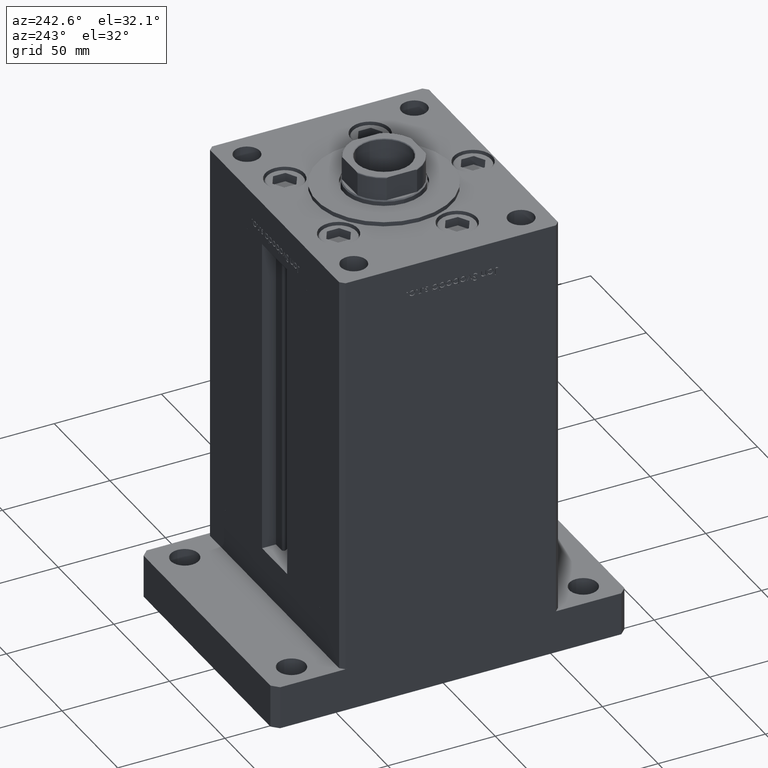
[diagram: clean part render]
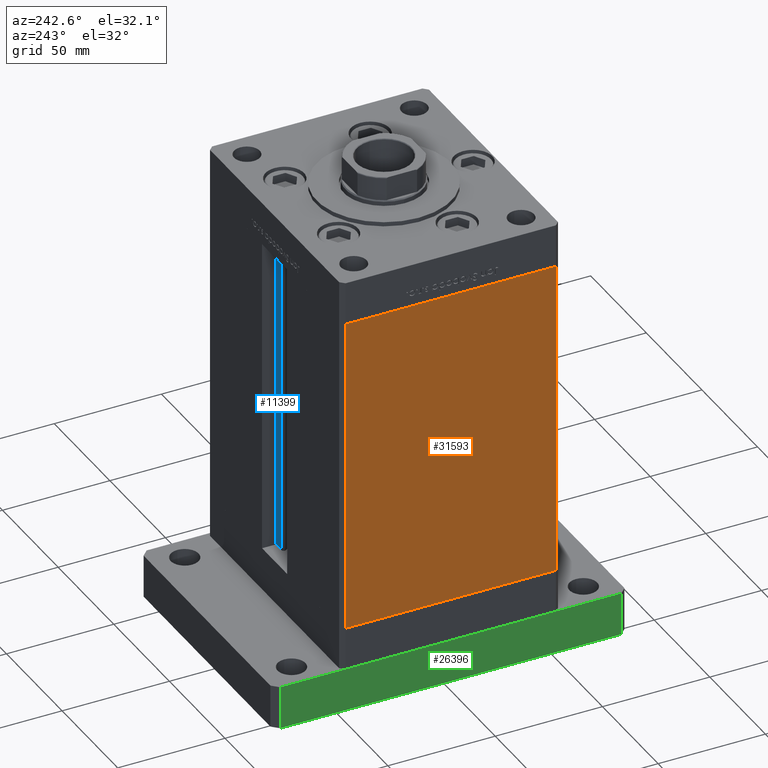
[diagram: same view with three faces highlighted in distinct colors, each labeled with its STEP entity id]
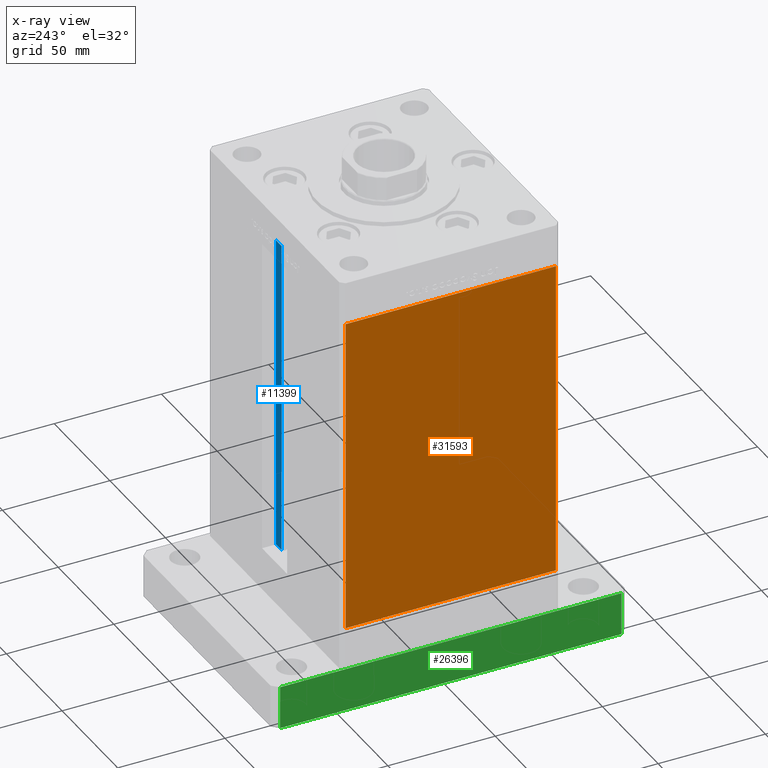
[diagram: x-ray of the same camera — body ghosted, the three highlighted faces saturated]
A machine part, auxiliary view with three faces highlighted in distinct colors.
The next image is the same camera in x-ray (body ghosted, the three faces saturated) — at least one of them is partly hidden behind the body in this view.
Their STEP definitions:

[orange] entity #31593 — the highlighted planar face has unit normal (1, 0, 0).
#1453 = EDGE_CURVE ( 'NONE', #38948, #11494, #34101, .T. ) ;
#2746 = ORIENTED_EDGE ( 'NONE', *, *, #45062, .F. ) ;
#3248 = DIRECTION ( 'NONE',  ( 2.832201593431521726E-16, -1.000000000000000000, 0.000000000000000000 ) ) ;
#3705 = CARTESIAN_POINT ( 'NONE',  ( -59.99999999999998579, -49.00000000000000000, 0.000000000000000000 ) ) ;
#6067 = VECTOR ( 'NONE', #3248, 1000.000000000000000 ) ;
#6714 = DIRECTION ( 'NONE',  ( 2.832201593431521726E-16, -1.000000000000000000, 0.000000000000000000 ) ) ;
#7109 = DIRECTION ( 'NONE',  ( -0.000000000000000000, -0.000000000000000000, -1.000000000000000000 ) ) ;
#8624 = EDGE_CURVE ( 'NONE', #16436, #19419, #48616, .T. ) ;
#9971 = EDGE_LOOP ( 'NONE', ( #37268, #30382, #2746, #10393 ) ) ;
#10393 = ORIENTED_EDGE ( 'NONE', *, *, #8624, .T. ) ;
#11494 = VERTEX_POINT ( 'NONE', #3705 ) ;
#16436 = VERTEX_POINT ( 'NONE', #16627 ) ;
#16457 = CARTESIAN_POINT ( 'NONE',  ( -59.99999999999998579, -49.00000000000000000, 148.5000000000000000 ) ) ;
#16627 = CARTESIAN_POINT ( 'NONE',  ( -60.00000000000001421, 49.00000000000000000, 148.5000000000000000 ) ) ;
#19419 = VERTEX_POINT ( 'NONE', #43335 ) ;
#22221 = VECTOR ( 'NONE', #6714, 1000.000000000000000 ) ;
#22447 = FACE_OUTER_BOUND ( 'NONE', #9971, .T. ) ;
#26004 = DIRECTION ( 'NONE',  ( -2.832201593431521726E-16, 1.000000000000000000, 0.000000000000000000 ) ) ;
#26270 = CARTESIAN_POINT ( 'NONE',  ( -60.00000000000001421, 49.00000000000000000, 0.000000000000000000 ) ) ;
#28321 = AXIS2_PLACEMENT_3D ( 'NONE', #47680, #30867, #26004 ) ;
#29934 = EDGE_CURVE ( 'NONE', #19419, #11494, #52007, .T. ) ;
#30382 = ORIENTED_EDGE ( 'NONE', *, *, #1453, .F. ) ;
#30570 = DIRECTION ( 'NONE',  ( -0.000000000000000000, -0.000000000000000000, -1.000000000000000000 ) ) ;
#30867 = DIRECTION ( 'NONE',  ( 1.000000000000000000, 2.832201593431521726E-16, -0.000000000000000000 ) ) ;
#31593 = ADVANCED_FACE ( 'NONE', ( #22447 ), #42545, .F. ) ;
#33981 = VECTOR ( 'NONE', #30570, 1000.000000000000000 ) ;
#34101 = LINE ( 'NONE', #51175, #33981 ) ;
#37268 = ORIENTED_EDGE ( 'NONE', *, *, #29934, .T. ) ;
#38948 = VERTEX_POINT ( 'NONE', #16457 ) ;
#40427 = LINE ( 'NONE', #52882, #6067 ) ;
#42545 = PLANE ( 'NONE',  #28321 ) ;
#43335 = CARTESIAN_POINT ( 'NONE',  ( -60.00000000000001421, 49.00000000000000000, 0.000000000000000000 ) ) ;
#43748 = VECTOR ( 'NONE', #7109, 1000.000000000000000 ) ;
#44294 = CARTESIAN_POINT ( 'NONE',  ( -60.00000000000001421, 49.00000000000000000, 148.5000000000000000 ) ) ;
#45062 = EDGE_CURVE ( 'NONE', #16436, #38948, #40427, .T. ) ;
#47680 = CARTESIAN_POINT ( 'NONE',  ( -60.00000000000001421, 49.00000000000000000, 148.5000000000000000 ) ) ;
#48616 = LINE ( 'NONE', #44294, #43748 ) ;
#51175 = CARTESIAN_POINT ( 'NONE',  ( -59.99999999999998579, -49.00000000000000000, 148.5000000000000000 ) ) ;
#52007 = LINE ( 'NONE', #26270, #22221 ) ;
#52882 = CARTESIAN_POINT ( 'NONE',  ( -60.00000000000001421, 49.00000000000000000, 148.5000000000000000 ) ) ;

[blue] entity #11399 — the highlighted planar face has unit normal (0, -1, 0).
#1990 = EDGE_CURVE ( 'NONE', #18978, #53230, #50981, .T. ) ;
#4751 = ORIENTED_EDGE ( 'NONE', *, *, #1990, .T. ) ;
#5723 = DIRECTION ( 'NONE',  ( -0.000000000000000000, -0.000000000000000000, 1.000000000000000000 ) ) ;
#6285 = VECTOR ( 'NONE', #22222, 1000.000000000000000 ) ;
#8630 = CARTESIAN_POINT ( 'NONE',  ( 0.000000000000000000, 44.50000000000000000, 148.5000000000000000 ) ) ;
#9273 = LINE ( 'NONE', #37769, #10106 ) ;
#10106 = VECTOR ( 'NONE', #5723, 1000.000000000000000 ) ;
#10221 = VERTEX_POINT ( 'NONE', #18607 ) ;
#10241 = DIRECTION ( 'NONE',  ( 0.000000000000000000, -0.000000000000000000, -1.000000000000000000 ) ) ;
#11399 = ADVANCED_FACE ( 'NONE', ( #34932 ), #14309, .F. ) ;
#13816 = CARTESIAN_POINT ( 'NONE',  ( 6.183333333334001480, 44.50000000000000000, 0.000000000000000000 ) ) ;
#14309 = PLANE ( 'NONE',  #49890 ) ;
#14341 = EDGE_CURVE ( 'NONE', #10221, #44735, #9273, .T. ) ;
#14886 = ORIENTED_EDGE ( 'NONE', *, *, #37778, .F. ) ;
#14922 = ORIENTED_EDGE ( 'NONE', *, *, #34211, .F. ) ;
#15948 = EDGE_LOOP ( 'NONE', ( #49930, #14886, #4751, #14922 ) ) ;
#17988 = VECTOR ( 'NONE', #49326, 1000.000000000000000 ) ;
#18607 = CARTESIAN_POINT ( 'NONE',  ( 11.25000000000000178, 44.50000000000000000, 0.000000000000000000 ) ) ;
#18978 = VERTEX_POINT ( 'NONE', #35227 ) ;
#20213 = DIRECTION ( 'NONE',  ( 1.000000000000000000, 0.000000000000000000, 0.000000000000000000 ) ) ;
#21029 = LINE ( 'NONE', #45195, #30255 ) ;
#22222 = DIRECTION ( 'NONE',  ( -0.000000000000000000, -0.000000000000000000, 1.000000000000000000 ) ) ;
#27028 = CARTESIAN_POINT ( 'NONE',  ( 11.25000000000000178, 44.50000000000000000, 148.5000000000000000 ) ) ;
#30255 = VECTOR ( 'NONE', #20213, 1000.000000000000000 ) ;
#30877 = CARTESIAN_POINT ( 'NONE',  ( 6.183333333334001480, 44.50000000000000000, 0.000000000000000000 ) ) ;
#34211 = EDGE_CURVE ( 'NONE', #44735, #53230, #48513, .T. ) ;
#34686 = CARTESIAN_POINT ( 'NONE',  ( 6.183333333334001480, 44.50000000000000000, 148.5000000000000000 ) ) ;
#34932 = FACE_OUTER_BOUND ( 'NONE', #15948, .T. ) ;
#35227 = CARTESIAN_POINT ( 'NONE',  ( 6.183333333334001480, 44.50000000000000000, 0.000000000000000000 ) ) ;
#37769 = CARTESIAN_POINT ( 'NONE',  ( 11.25000000000000178, 44.50000000000000000, 0.000000000000000000 ) ) ;
#37778 = EDGE_CURVE ( 'NONE', #18978, #10221, #21029, .T. ) ;
#44735 = VERTEX_POINT ( 'NONE', #27028 ) ;
#45195 = CARTESIAN_POINT ( 'NONE',  ( 6.183333333334001480, 44.50000000000000000, 0.000000000000000000 ) ) ;
#47423 = DIRECTION ( 'NONE',  ( 0.000000000000000000, -1.000000000000000000, 0.000000000000000000 ) ) ;
#48513 = LINE ( 'NONE', #8630, #17988 ) ;
#49326 = DIRECTION ( 'NONE',  ( -1.000000000000000000, 0.000000000000000000, 0.000000000000000000 ) ) ;
#49890 = AXIS2_PLACEMENT_3D ( 'NONE', #30877, #47423, #10241 ) ;
#49930 = ORIENTED_EDGE ( 'NONE', *, *, #14341, .F. ) ;
#50981 = LINE ( 'NONE', #13816, #6285 ) ;
#53230 = VERTEX_POINT ( 'NONE', #34686 ) ;

[green] entity #26396 — the highlighted planar face has unit normal (1, 0, 0).
#1397 = VERTEX_POINT ( 'NONE', #46324 ) ;
#1624 = VECTOR ( 'NONE', #7727, 1000.000000000000000 ) ;
#5149 = VECTOR ( 'NONE', #35134, 1000.000000000000000 ) ;
#7298 = ORIENTED_EDGE ( 'NONE', *, *, #25022, .F. ) ;
#7727 = DIRECTION ( 'NONE',  ( -0.000000000000000000, -0.000000000000000000, -1.000000000000000000 ) ) ;
#9714 = DIRECTION ( 'NONE',  ( 1.000000000000000000, 2.618450529776312260E-16, -0.000000000000000000 ) ) ;
#10179 = LINE ( 'NONE', #18581, #5149 ) ;
#13786 = PLANE ( 'NONE',  #48098 ) ;
#15036 = CARTESIAN_POINT ( 'NONE',  ( -59.99999999999998579, -79.50000000000002842, 20.00000000000000000 ) ) ;
#16299 = ORIENTED_EDGE ( 'NONE', *, *, #40053, .T. ) ;
#18581 = CARTESIAN_POINT ( 'NONE',  ( -60.00000000000002842, 79.50000000000001421, 0.000000000000000000 ) ) ;
#19434 = VECTOR ( 'NONE', #31596, 1000.000000000000000 ) ;
#19661 = LINE ( 'NONE', #27818, #1624 ) ;
#23638 = DIRECTION ( 'NONE',  ( 2.618450529776312260E-16, -1.000000000000000000, 0.000000000000000000 ) ) ;
#23770 = VECTOR ( 'NONE', #23638, 1000.000000000000000 ) ;
#24198 = VERTEX_POINT ( 'NONE', #35463 ) ;
#24791 = EDGE_CURVE ( 'NONE', #44492, #1397, #44887, .T. ) ;
#25022 = EDGE_CURVE ( 'NONE', #28074, #44492, #35859, .T. ) ;
#26396 = ADVANCED_FACE ( 'NONE', ( #42827 ), #13786, .F. ) ;
#26545 = DIRECTION ( 'NONE',  ( -2.618450529776312260E-16, 1.000000000000000000, 0.000000000000000000 ) ) ;
#27818 = CARTESIAN_POINT ( 'NONE',  ( -60.00000000000002842, 79.50000000000001421, 20.00000000000000000 ) ) ;
#28074 = VERTEX_POINT ( 'NONE', #48139 ) ;
#31596 = DIRECTION ( 'NONE',  ( -0.000000000000000000, -0.000000000000000000, -1.000000000000000000 ) ) ;
#31792 = CARTESIAN_POINT ( 'NONE',  ( -60.00000000000002842, 79.50000000000001421, 20.00000000000000000 ) ) ;
#35134 = DIRECTION ( 'NONE',  ( 2.618450529776312260E-16, -1.000000000000000000, 0.000000000000000000 ) ) ;
#35213 = CARTESIAN_POINT ( 'NONE',  ( -59.99999999999998579, -79.50000000000002842, 20.00000000000000000 ) ) ;
#35463 = CARTESIAN_POINT ( 'NONE',  ( -60.00000000000002842, 79.50000000000001421, 0.000000000000000000 ) ) ;
#35859 = LINE ( 'NONE', #31792, #23770 ) ;
#39224 = EDGE_CURVE ( 'NONE', #24198, #1397, #10179, .T. ) ;
#40053 = EDGE_CURVE ( 'NONE', #28074, #24198, #19661, .T. ) ;
#42827 = FACE_OUTER_BOUND ( 'NONE', #50775, .T. ) ;
#44492 = VERTEX_POINT ( 'NONE', #35213 ) ;
#44887 = LINE ( 'NONE', #15036, #19434 ) ;
#46324 = CARTESIAN_POINT ( 'NONE',  ( -59.99999999999998579, -79.50000000000002842, 0.000000000000000000 ) ) ;
#48098 = AXIS2_PLACEMENT_3D ( 'NONE', #50422, #9714, #26545 ) ;
#48139 = CARTESIAN_POINT ( 'NONE',  ( -60.00000000000002842, 79.50000000000001421, 20.00000000000000000 ) ) ;
#50422 = CARTESIAN_POINT ( 'NONE',  ( -60.00000000000002842, 79.50000000000001421, 20.00000000000000000 ) ) ;
#50775 = EDGE_LOOP ( 'NONE', ( #51599, #52919, #7298, #16299 ) ) ;
#51599 = ORIENTED_EDGE ( 'NONE', *, *, #39224, .T. ) ;
#52919 = ORIENTED_EDGE ( 'NONE', *, *, #24791, .F. ) ;